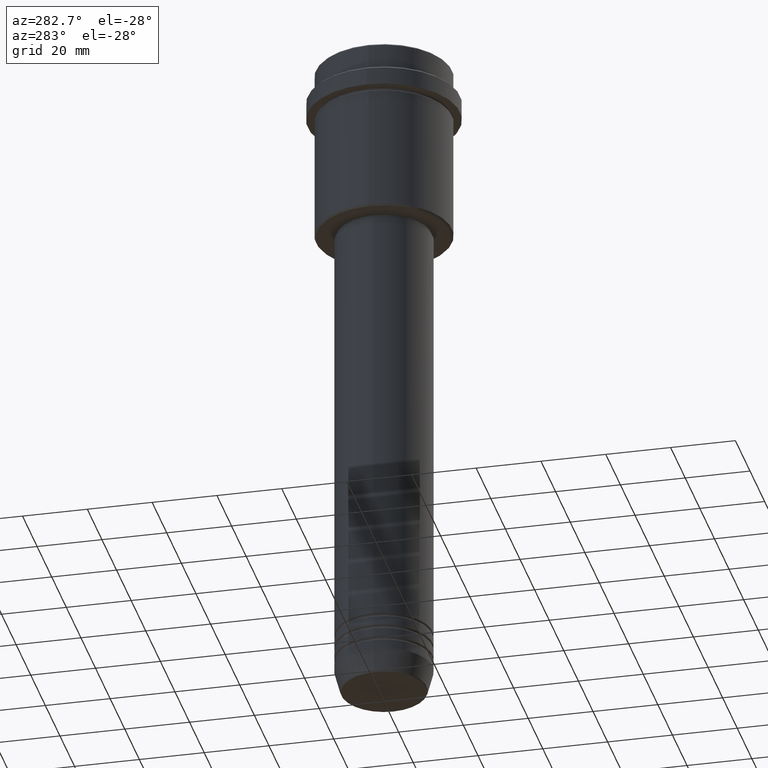
[diagram: clean part render]
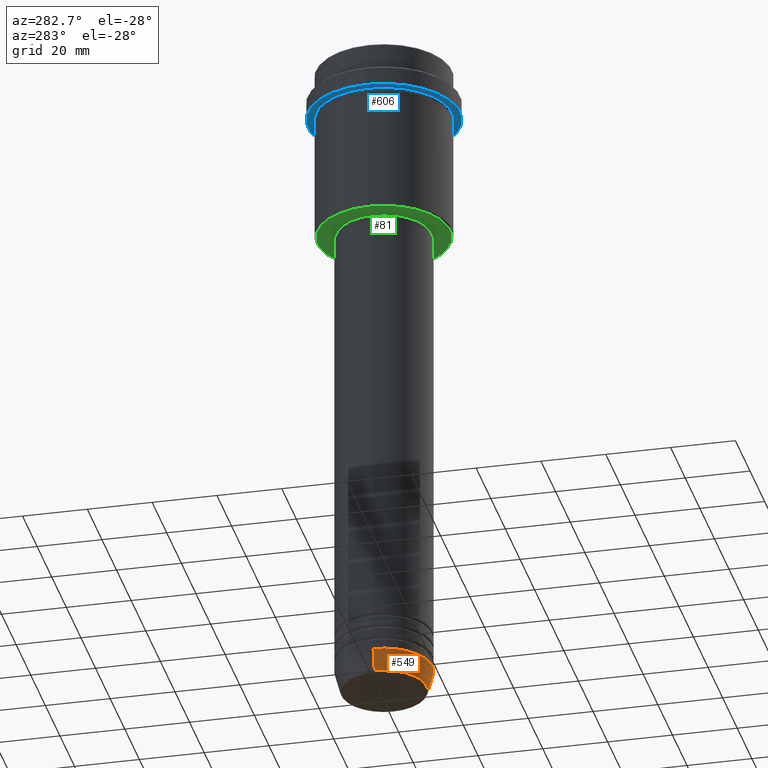
[diagram: same view with three faces highlighted in distinct colors, each labeled with its STEP entity id]
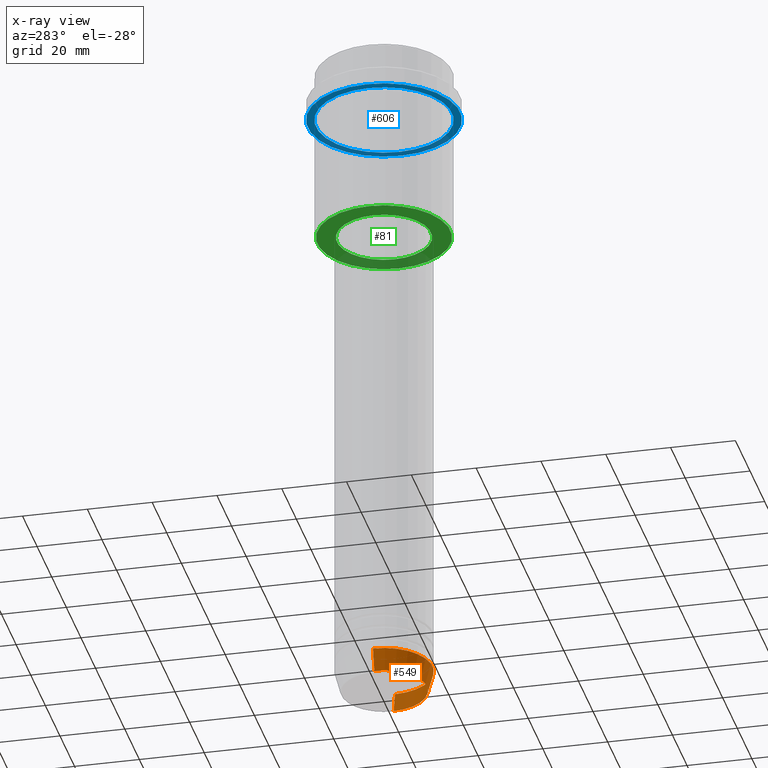
[diagram: x-ray of the same camera — body ghosted, the three highlighted faces saturated]
A machine part, auxiliary view with three faces highlighted in distinct colors.
The next image is the same camera in x-ray (body ghosted, the three faces saturated) — at least one of them is partly hidden behind the body in this view.
Their STEP definitions:

[orange] entity #549 — the highlighted conical surface has half-angle 15 deg.
#9 = VECTOR ( 'NONE', #979, 1000.000000000000000 ) ;
#24 = DIRECTION ( 'NONE',  ( -0.000000000000000000, -0.000000000000000000, 1.000000000000000000 ) ) ;
#43 = DIRECTION ( 'NONE',  ( -0.000000000000000000, -0.000000000000000000, 1.000000000000000000 ) ) ;
#90 = VERTEX_POINT ( 'NONE', #799 ) ;
#91 = CARTESIAN_POINT ( 'NONE',  ( 15.00000000000000000, 0.000000000000000000, -203.0000000000000000 ) ) ;
#138 = EDGE_CURVE ( 'NONE', #90, #317, #1125, .T. ) ;
#190 = CONICAL_SURFACE ( 'NONE', #856, 15.00000000000000000, 0.2617993877991500740 ) ;
#287 = AXIS2_PLACEMENT_3D ( 'NONE', #1401, #826, #742 ) ;
#317 = VERTEX_POINT ( 'NONE', #1031 ) ;
#324 = ORIENTED_EDGE ( 'NONE', *, *, #568, .T. ) ;
#341 = DIRECTION ( 'NONE',  ( 1.000000000000000000, 0.000000000000000000, 0.000000000000000000 ) ) ;
#352 = DIRECTION ( 'NONE',  ( 1.000000000000000000, 0.000000000000000000, 0.000000000000000000 ) ) ;
#417 = FACE_OUTER_BOUND ( 'NONE', #572, .T. ) ;
#427 = CARTESIAN_POINT ( 'NONE',  ( -15.00000000000000000, 1.836970198721029589E-15, -203.0000000000000000 ) ) ;
#432 = VERTEX_POINT ( 'NONE', #427 ) ;
#472 = LINE ( 'NONE', #1010, #811 ) ;
#506 = EDGE_CURVE ( 'NONE', #90, #432, #1087, .T. ) ;
#549 = ADVANCED_FACE ( 'NONE', ( #417 ), #190, .T. ) ;
#568 = EDGE_CURVE ( 'NONE', #317, #846, #472, .T. ) ;
#572 = EDGE_LOOP ( 'NONE', ( #709, #1181, #324, #727 ) ) ;
#709 = ORIENTED_EDGE ( 'NONE', *, *, #506, .F. ) ;
#727 = ORIENTED_EDGE ( 'NONE', *, *, #798, .F. ) ;
#742 = DIRECTION ( 'NONE',  ( 1.000000000000000000, 0.000000000000000000, 0.000000000000000000 ) ) ;
#769 = CARTESIAN_POINT ( 'NONE',  ( -15.00000000000000000, 1.836970198721029589E-15, -203.0000000000000000 ) ) ;
#798 = EDGE_CURVE ( 'NONE', #432, #846, #903, .T. ) ;
#799 = CARTESIAN_POINT ( 'NONE',  ( -13.22365507213719660, 1.728200442216588780E-15, -209.6294095225512706 ) ) ;
#811 = VECTOR ( 'NONE', #885, 1000.000000000000000 ) ;
#826 = DIRECTION ( 'NONE',  ( -0.000000000000000000, -0.000000000000000000, 1.000000000000000000 ) ) ;
#846 = VERTEX_POINT ( 'NONE', #91 ) ;
#853 = CARTESIAN_POINT ( 'NONE',  ( 0.000000000000000000, 0.000000000000000000, -203.0000000000000000 ) ) ;
#856 = AXIS2_PLACEMENT_3D ( 'NONE', #853, #43, #352 ) ;
#885 = DIRECTION ( 'NONE',  ( 0.2588190451025213501, 0.000000000000000000, 0.9659258262890680902 ) ) ;
#903 = CIRCLE ( 'NONE', #287, 15.00000000000000000 ) ;
#979 = DIRECTION ( 'NONE',  ( -0.2588190451025213501, 3.169619151431772337E-17, 0.9659258262890680902 ) ) ;
#1010 = CARTESIAN_POINT ( 'NONE',  ( 15.00000000000000000, 0.000000000000000000, -203.0000000000000000 ) ) ;
#1031 = CARTESIAN_POINT ( 'NONE',  ( 13.22365507213719482, 0.000000000000000000, -209.6294095225512706 ) ) ;
#1087 = LINE ( 'NONE', #769, #9 ) ;
#1115 = CARTESIAN_POINT ( 'NONE',  ( 0.000000000000000000, 0.000000000000000000, -209.6294095225512706 ) ) ;
#1125 = CIRCLE ( 'NONE', #1238, 13.22365507213719482 ) ;
#1181 = ORIENTED_EDGE ( 'NONE', *, *, #138, .T. ) ;
#1238 = AXIS2_PLACEMENT_3D ( 'NONE', #1115, #24, #341 ) ;
#1401 = CARTESIAN_POINT ( 'NONE',  ( 0.000000000000000000, 0.000000000000000000, -203.0000000000000000 ) ) ;

[blue] entity #606 — the highlighted planar face has unit normal (0, 0, -1).
#53 = DIRECTION ( 'NONE',  ( 1.000000000000000000, 0.000000000000000000, 0.000000000000000000 ) ) ;
#62 = ORIENTED_EDGE ( 'NONE', *, *, #1098, .F. ) ;
#127 = AXIS2_PLACEMENT_3D ( 'NONE', #685, #140, #53 ) ;
#140 = DIRECTION ( 'NONE',  ( -0.000000000000000000, -0.000000000000000000, 1.000000000000000000 ) ) ;
#143 = CARTESIAN_POINT ( 'NONE',  ( 0.000000000000000000, 0.000000000000000000, -15.00000000000000178 ) ) ;
#161 = ORIENTED_EDGE ( 'NONE', *, *, #1015, .T. ) ;
#164 = CARTESIAN_POINT ( 'NONE',  ( -23.50000000000000711, 2.877919977996281109E-15, -15.00000000000000178 ) ) ;
#165 = DIRECTION ( 'NONE',  ( -0.000000000000000000, -0.000000000000000000, 1.000000000000000000 ) ) ;
#205 = EDGE_CURVE ( 'NONE', #1032, #1110, #1356, .T. ) ;
#240 = ORIENTED_EDGE ( 'NONE', *, *, #290, .F. ) ;
#289 = CIRCLE ( 'NONE', #836, 20.99999999999999289 ) ;
#290 = EDGE_CURVE ( 'NONE', #719, #539, #715, .T. ) ;
#353 = AXIS2_PLACEMENT_3D ( 'NONE', #780, #1320, #481 ) ;
#373 = DIRECTION ( 'NONE',  ( -0.000000000000000000, -0.000000000000000000, 1.000000000000000000 ) ) ;
#379 = CIRCLE ( 'NONE', #127, 23.50000000000000355 ) ;
#399 = AXIS2_PLACEMENT_3D ( 'NONE', #143, #462, #1022 ) ;
#462 = DIRECTION ( 'NONE',  ( -0.000000000000000000, -0.000000000000000000, 1.000000000000000000 ) ) ;
#481 = DIRECTION ( 'NONE',  ( -1.000000000000000000, 0.000000000000000000, -0.000000000000000000 ) ) ;
#498 = CARTESIAN_POINT ( 'NONE',  ( 20.99999999999999289, 2.571758278209440872E-15, -15.00000000000000178 ) ) ;
#503 = CARTESIAN_POINT ( 'NONE',  ( 0.000000000000000000, 0.000000000000000000, -15.00000000000000178 ) ) ;
#529 = CARTESIAN_POINT ( 'NONE',  ( 23.50000000000000355, 0.000000000000000000, -15.00000000000000178 ) ) ;
#539 = VERTEX_POINT ( 'NONE', #529 ) ;
#606 = ADVANCED_FACE ( 'NONE', ( #1122, #996 ), #1107, .T. ) ;
#620 = EDGE_LOOP ( 'NONE', ( #828, #161 ) ) ;
#645 = AXIS2_PLACEMENT_3D ( 'NONE', #503, #165, #814 ) ;
#685 = CARTESIAN_POINT ( 'NONE',  ( 0.000000000000000000, 0.000000000000000000, -15.00000000000000178 ) ) ;
#691 = DIRECTION ( 'NONE',  ( -1.000000000000000000, 0.000000000000000000, 0.000000000000000000 ) ) ;
#715 = CIRCLE ( 'NONE', #645, 23.50000000000000355 ) ;
#719 = VERTEX_POINT ( 'NONE', #164 ) ;
#780 = CARTESIAN_POINT ( 'NONE',  ( 0.000000000000000000, 23.50000000000000355, -15.00000000000000178 ) ) ;
#814 = DIRECTION ( 'NONE',  ( 1.000000000000000000, 0.000000000000000000, 0.000000000000000000 ) ) ;
#828 = ORIENTED_EDGE ( 'NONE', *, *, #205, .T. ) ;
#836 = AXIS2_PLACEMENT_3D ( 'NONE', #1233, #373, #691 ) ;
#996 = FACE_OUTER_BOUND ( 'NONE', #1409, .T. ) ;
#1015 = EDGE_CURVE ( 'NONE', #1110, #1032, #289, .T. ) ;
#1022 = DIRECTION ( 'NONE',  ( -1.000000000000000000, 0.000000000000000000, 0.000000000000000000 ) ) ;
#1032 = VERTEX_POINT ( 'NONE', #1111 ) ;
#1098 = EDGE_CURVE ( 'NONE', #539, #719, #379, .T. ) ;
#1107 = PLANE ( 'NONE',  #353 ) ;
#1110 = VERTEX_POINT ( 'NONE', #498 ) ;
#1111 = CARTESIAN_POINT ( 'NONE',  ( -20.99999999999999289, 0.000000000000000000, -15.00000000000000178 ) ) ;
#1122 = FACE_BOUND ( 'NONE', #620, .T. ) ;
#1233 = CARTESIAN_POINT ( 'NONE',  ( 0.000000000000000000, 0.000000000000000000, -15.00000000000000178 ) ) ;
#1320 = DIRECTION ( 'NONE',  ( 0.000000000000000000, 0.000000000000000000, -1.000000000000000000 ) ) ;
#1356 = CIRCLE ( 'NONE', #399, 20.99999999999999289 ) ;
#1409 = EDGE_LOOP ( 'NONE', ( #62, #240 ) ) ;

[green] entity #81 — the highlighted planar face has unit normal (0, 0, -1).
#23 = EDGE_CURVE ( 'NONE', #874, #1095, #257, .T. ) ;
#46 = ORIENTED_EDGE ( 'NONE', *, *, #1275, .T. ) ;
#81 = ADVANCED_FACE ( 'NONE', ( #451, #1321 ), #737, .T. ) ;
#86 = EDGE_CURVE ( 'NONE', #1095, #874, #121, .T. ) ;
#95 = DIRECTION ( 'NONE',  ( 0.000000000000000000, 0.000000000000000000, -1.000000000000000000 ) ) ;
#121 = CIRCLE ( 'NONE', #283, 14.49999999999999822 ) ;
#166 = AXIS2_PLACEMENT_3D ( 'NONE', #1174, #1065, #530 ) ;
#185 = EDGE_LOOP ( 'NONE', ( #618, #253 ) ) ;
#208 = DIRECTION ( 'NONE',  ( -1.000000000000000000, 0.000000000000000000, 0.000000000000000000 ) ) ;
#243 = CARTESIAN_POINT ( 'NONE',  ( 20.49999999999998934, 0.000000000000000000, -55.00000000000002842 ) ) ;
#253 = ORIENTED_EDGE ( 'NONE', *, *, #23, .T. ) ;
#257 = CIRCLE ( 'NONE', #831, 14.49999999999999822 ) ;
#283 = AXIS2_PLACEMENT_3D ( 'NONE', #418, #855, #1071 ) ;
#418 = CARTESIAN_POINT ( 'NONE',  ( 0.000000000000000000, 0.000000000000000000, -55.00000000000002842 ) ) ;
#426 = AXIS2_PLACEMENT_3D ( 'NONE', #771, #1399, #208 ) ;
#451 = FACE_OUTER_BOUND ( 'NONE', #797, .T. ) ;
#499 = CIRCLE ( 'NONE', #589, 20.49999999999998934 ) ;
#530 = DIRECTION ( 'NONE',  ( -1.000000000000000000, 0.000000000000000000, -0.000000000000000000 ) ) ;
#535 = ORIENTED_EDGE ( 'NONE', *, *, #1368, .T. ) ;
#589 = AXIS2_PLACEMENT_3D ( 'NONE', #1322, #95, #1089 ) ;
#618 = ORIENTED_EDGE ( 'NONE', *, *, #86, .T. ) ;
#647 = VERTEX_POINT ( 'NONE', #243 ) ;
#657 = CARTESIAN_POINT ( 'NONE',  ( -14.49999999999999822, 1.775737858763662015E-15, -55.00000000000002842 ) ) ;
#708 = CARTESIAN_POINT ( 'NONE',  ( 14.49999999999999822, 0.000000000000000000, -55.00000000000002842 ) ) ;
#737 = PLANE ( 'NONE',  #166 ) ;
#771 = CARTESIAN_POINT ( 'NONE',  ( 0.000000000000000000, 0.000000000000000000, -55.00000000000002842 ) ) ;
#797 = EDGE_LOOP ( 'NONE', ( #535, #46 ) ) ;
#817 = VERTEX_POINT ( 'NONE', #923 ) ;
#831 = AXIS2_PLACEMENT_3D ( 'NONE', #1298, #1192, #879 ) ;
#855 = DIRECTION ( 'NONE',  ( -0.000000000000000000, -0.000000000000000000, 1.000000000000000000 ) ) ;
#874 = VERTEX_POINT ( 'NONE', #657 ) ;
#879 = DIRECTION ( 'NONE',  ( 1.000000000000000000, 0.000000000000000000, 0.000000000000000000 ) ) ;
#923 = CARTESIAN_POINT ( 'NONE',  ( -20.49999999999998934, 2.541142108230757085E-15, -55.00000000000002842 ) ) ;
#1039 = CIRCLE ( 'NONE', #426, 20.49999999999998934 ) ;
#1065 = DIRECTION ( 'NONE',  ( 0.000000000000000000, 0.000000000000000000, -1.000000000000000000 ) ) ;
#1071 = DIRECTION ( 'NONE',  ( 1.000000000000000000, 0.000000000000000000, 0.000000000000000000 ) ) ;
#1089 = DIRECTION ( 'NONE',  ( -1.000000000000000000, 0.000000000000000000, 0.000000000000000000 ) ) ;
#1095 = VERTEX_POINT ( 'NONE', #708 ) ;
#1174 = CARTESIAN_POINT ( 'NONE',  ( 0.000000000000000000, 21.00000000000000000, -55.00000000000002842 ) ) ;
#1192 = DIRECTION ( 'NONE',  ( -0.000000000000000000, -0.000000000000000000, 1.000000000000000000 ) ) ;
#1275 = EDGE_CURVE ( 'NONE', #817, #647, #1039, .T. ) ;
#1298 = CARTESIAN_POINT ( 'NONE',  ( 0.000000000000000000, 0.000000000000000000, -55.00000000000002842 ) ) ;
#1321 = FACE_BOUND ( 'NONE', #185, .T. ) ;
#1322 = CARTESIAN_POINT ( 'NONE',  ( 0.000000000000000000, 0.000000000000000000, -55.00000000000002842 ) ) ;
#1368 = EDGE_CURVE ( 'NONE', #647, #817, #499, .T. ) ;
#1399 = DIRECTION ( 'NONE',  ( 0.000000000000000000, 0.000000000000000000, -1.000000000000000000 ) ) ;